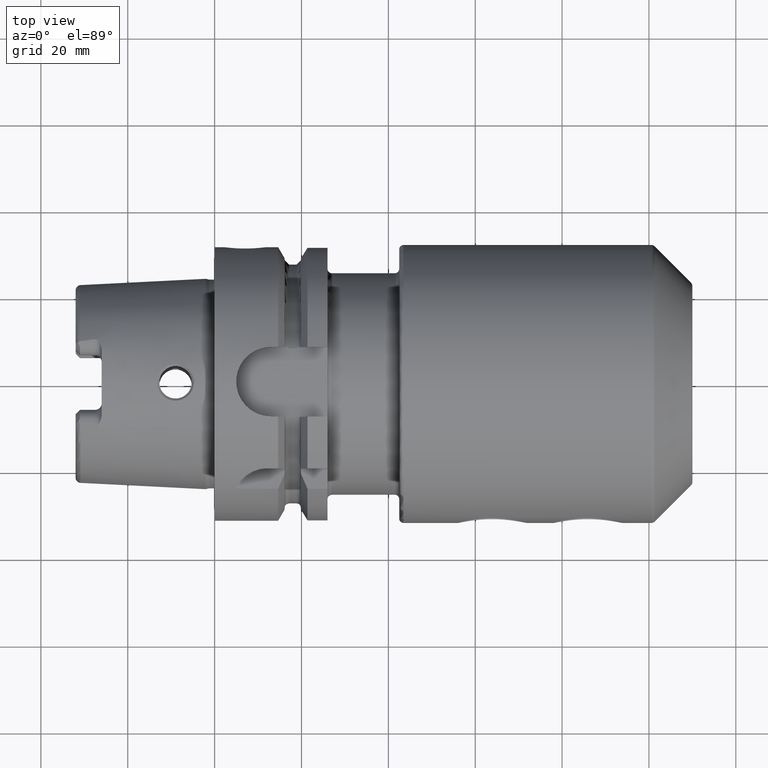
[diagram: clean part render]
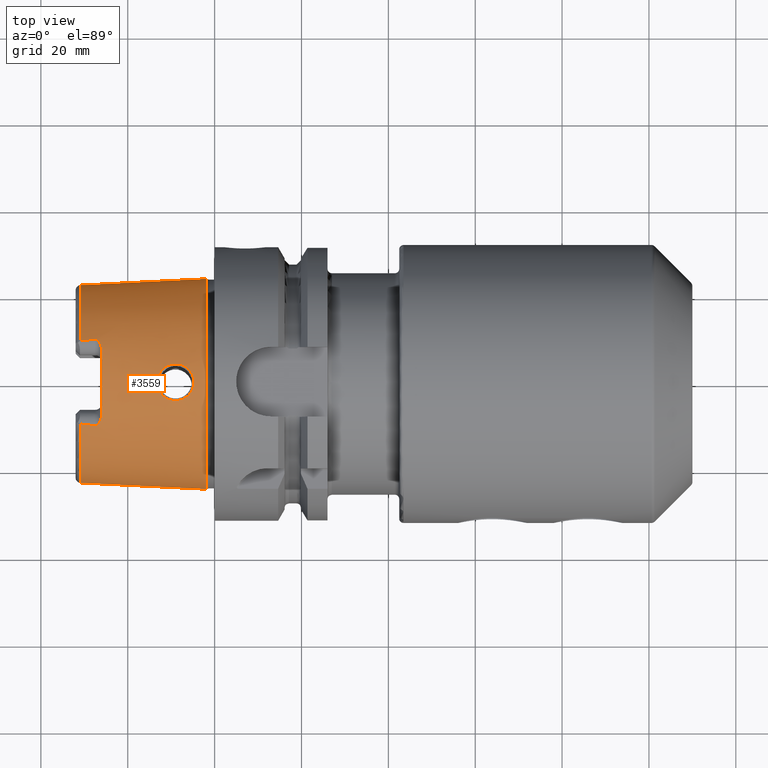
[diagram: same view with one face highlighted and labeled with its STEP entity id]
A machine part, top view. The second image highlights one B-rep face of the part: STEP entity #3559.
In plain terms, the highlighted conical surface has half-angle 2.868 deg.
Its self-contained STEP definition (entity closure, byte-faithful):
#2=CARTESIAN_POINT('',(-3.086004306431E1,-9.562027931336E0,2.067E1));
#3=CARTESIAN_POINT('',(-3.049253157278E1,-9.605880711653E0,2.067E1));
#4=CARTESIAN_POINT('',(-2.975362396220E1,-9.693552821268E0,2.067E1));
#5=CARTESIAN_POINT('',(-2.863363692789E1,-9.824971306479E0,2.067E1));
#6=CARTESIAN_POINT('',(-2.787917629619E1,-9.912538799101E0,2.067E1));
#7=CARTESIAN_POINT('',(-2.75E1,-9.956312881929E0,2.067E1));
#9=CARTESIAN_POINT('',(-2.6E1,0.E0,0.E0));
#10=DIRECTION('',(1.E0,0.E0,0.E0));
#11=DIRECTION('',(0.E0,3.233021702202E-1,9.462957818415E-1));
#12=AXIS2_PLACEMENT_3D('',#9,#10,#11);
#14=CARTESIAN_POINT('',(-2.75E1,9.956312881929E0,2.067E1));
#15=CARTESIAN_POINT('',(-2.787916500946E1,9.912540102101E0,2.067E1));
#16=CARTESIAN_POINT('',(-2.863361059702E1,9.824974374327E0,2.067E1));
#17=CARTESIAN_POINT('',(-2.975359777716E1,9.693555915617E0,2.067E1));
#18=CARTESIAN_POINT('',(-3.049252035285E1,9.605882050456E0,2.067E1));
#19=CARTESIAN_POINT('',(-3.086004306431E1,9.562027931336E0,2.067E1));
#21=CARTESIAN_POINT('',(-2.E0,0.E0,0.E0));
#22=DIRECTION('',(1.E0,0.E0,0.E0));
#23=DIRECTION('',(0.E0,1.E0,0.E0));
#24=AXIS2_PLACEMENT_3D('',#21,#22,#23);
#26=CARTESIAN_POINT('',(-1.324941786023E1,-7.219004501044E-9,2.365679941218E1));
#27=CARTESIAN_POINT('',(-1.324962652857E1,2.128419836803E-1,2.365678895818E1));
#28=CARTESIAN_POINT('',(-1.321789572653E1,6.392154004916E-1,2.365279437370E1));
#29=CARTESIAN_POINT('',(-1.306583173353E1,1.295455377947E0,2.363353567605E1));
#30=CARTESIAN_POINT('',(-1.280774848226E1,1.924363159712E0,2.360322882883E1));
#31=CARTESIAN_POINT('',(-1.245682539685E1,2.498002640667E0,2.356658532007E1));
#32=CARTESIAN_POINT('',(-1.202590717647E1,3.003748276320E0,2.352875153285E1));
#33=CARTESIAN_POINT('',(-1.151587453193E1,3.440667161266E0,2.349418467003E1));
#34=CARTESIAN_POINT('',(-1.094488701051E1,3.790928519035E0,2.346872738592E1));
#35=CARTESIAN_POINT('',(-1.032606556195E1,4.047968073685E0,2.345686676513E1));
#36=CARTESIAN_POINT('',(-9.674487886290E0,4.205448144478E0,2.346208039452E1));
#37=CARTESIAN_POINT('',(-9.005382482159E0,4.259666064034E0,2.348629251751E1));
#38=CARTESIAN_POINT('',(-8.334406518885E0,4.208654245636E0,2.352972397238E1));
#39=CARTESIAN_POINT('',(-7.678583145358E0,4.052835118832E0,2.359064506703E1));
#40=CARTESIAN_POINT('',(-7.054746219975E0,3.795297178824E0,2.366546684138E1));
#41=CARTESIAN_POINT('',(-6.478384090661E0,3.441929617339E0,2.374909717224E1));
#42=CARTESIAN_POINT('',(-5.963720829785E0,2.998888105398E0,2.383556837714E1));
#43=CARTESIAN_POINT('',(-5.531697254110E0,2.487245477785E0,2.391660020727E1));
#44=CARTESIAN_POINT('',(-5.183622696567E0,1.910877761534E0,2.398748891792E1));
#45=CARTESIAN_POINT('',(-4.930520871648E0,1.285429316774E0,2.404215083473E1));
#46=CARTESIAN_POINT('',(-4.781592632661E0,6.352567731875E-1,2.407559904029E1));
#47=CARTESIAN_POINT('',(-4.750478792548E0,2.114683342023E-1,2.408258846670E1));
#48=CARTESIAN_POINT('',(-4.750585905229E0,7.197553449570E-9,2.408258310050E1));
#50=CARTESIAN_POINT('',(-4.750585905229E0,7.197553449570E-9,2.408258310050E1));
#51=CARTESIAN_POINT('',(-4.750395627959E0,-2.105069288240E-1,2.408259263313E1));
#52=CARTESIAN_POINT('',(-4.781309836194E0,-6.330630552620E-1,2.407566909301E1));
#53=CARTESIAN_POINT('',(-4.930068182376E0,-1.284334675678E0,2.404224817580E1));
#54=CARTESIAN_POINT('',(-5.183732271360E0,-1.911208248299E0,2.398746160179E1));
#55=CARTESIAN_POINT('',(-5.531554832014E0,-2.486758661206E0,2.391664059803E1));
#56=CARTESIAN_POINT('',(-5.960736101322E0,-2.995606004120E0,2.383611484308E1));
#57=CARTESIAN_POINT('',(-6.472413726219E0,-3.437431533938E0,2.375005151539E1));
#58=CARTESIAN_POINT('',(-7.047774921505E0,-3.791791568104E0,2.366638920783E1));
#59=CARTESIAN_POINT('',(-7.671990993959E0,-4.050736119112E0,2.359134441504E1));
#60=CARTESIAN_POINT('',(-8.327799970975E0,-4.207619640495E0,2.353024681340E1));
#61=CARTESIAN_POINT('',(-8.998662135271E0,-4.259680399888E0,2.348663216787E1));
#62=CARTESIAN_POINT('',(-9.668037445633E0,-4.206488328283E0,2.346222081393E1));
#63=CARTESIAN_POINT('',(-1.031990079178E1,-4.049961979503E0,2.345683302195E1));
#64=CARTESIAN_POINT('',(-1.093870323089E1,-3.794046262990E0,2.346853209808E1));
#65=CARTESIAN_POINT('',(-1.151051650685E1,-3.444658410973E0,2.349386945058E1));
#66=CARTESIAN_POINT('',(-1.202283712979E1,-3.007012911900E0,2.352850073603E1));
#67=CARTESIAN_POINT('',(-1.245609200384E1,-2.499248587590E0,2.356650362943E1));
#68=CARTESIAN_POINT('',(-1.280745559330E1,-1.924878595842E0,2.360319856514E1));
#69=CARTESIAN_POINT('',(-1.306526541006E1,-1.297000138509E0,2.363346880977E1));
#70=CARTESIAN_POINT('',(-1.321765204718E1,-6.412116938996E-1,2.365275767433E1));
#71=CARTESIAN_POINT('',(-1.324954460014E1,-2.136894906074E-1,2.365679306269E1));
#72=CARTESIAN_POINT('',(-1.324941786023E1,-7.219004501044E-9,2.365679941218E1));
#82=CARTESIAN_POINT('',(-2.651259296226E1,-9.27E0,2.104082891384E1));
#83=CARTESIAN_POINT('',(-2.655060528934E1,-9.340723960488E0,2.100758892059E1));
#84=CARTESIAN_POINT('',(-2.663038504623E1,-9.471838743333E0,2.094458948833E1));
#85=CARTESIAN_POINT('',(-2.676092291608E1,-9.637362323001E0,2.086163997968E1));
#86=CARTESIAN_POINT('',(-2.690131837165E1,-9.770899105642E0,2.079157611E1));
#87=CARTESIAN_POINT('',(-2.705226454993E1,-9.871852756963E0,2.073538687848E1));
#88=CARTESIAN_POINT('',(-2.720441776005E1,-9.934823835429E0,2.069678496112E1));
#89=CARTESIAN_POINT('',(-2.735189841416E1,-9.963277454574E0,2.067488149845E1));
#90=CARTESIAN_POINT('',(-2.745092740764E1,-9.961978077101E0,2.067E1));
#91=CARTESIAN_POINT('',(-2.75E1,-9.956312881929E0,2.067E1));
#93=CARTESIAN_POINT('',(-2.6E1,-7.441787718571E0,2.178189005860E1));
#94=CARTESIAN_POINT('',(-2.6E1,-7.574673232080E0,2.173648969253E1));
#95=CARTESIAN_POINT('',(-2.601813511197E1,-7.850865569829E0,2.163846841914E1));
#96=CARTESIAN_POINT('',(-2.610760114915E1,-8.297034966034E0,2.146679982993E1));
#97=CARTESIAN_POINT('',(-2.626559360892E1,-8.768529603152E0,2.127027062942E1));
#98=CARTESIAN_POINT('',(-2.642147165719E1,-9.100463955368E0,2.112051021193E1));
#99=CARTESIAN_POINT('',(-2.651259296226E1,-9.27E0,2.104082891384E1));
#185=CARTESIAN_POINT('',(-3.086004306431E1,0.E0,0.E0));
#186=DIRECTION('',(1.E0,0.E0,0.E0));
#187=DIRECTION('',(0.E0,1.E0,0.E0));
#188=AXIS2_PLACEMENT_3D('',#185,#186,#187);
#196=CARTESIAN_POINT('',(-3.086004306431E1,9.562027931336E0,2.067E1));
#261=CARTESIAN_POINT('',(-3.086004306431E1,0.E0,0.E0));
#262=DIRECTION('',(1.E0,0.E0,0.E0));
#263=DIRECTION('',(0.E0,-4.198553792210E-1,9.075910205259E-1));
#264=AXIS2_PLACEMENT_3D('',#261,#262,#263);
#457=CARTESIAN_POINT('',(-2.651259296226E1,9.27E0,2.104082891384E1));
#458=CARTESIAN_POINT('',(-2.642147038701E1,9.100461592138E0,2.112051132264E1));
#459=CARTESIAN_POINT('',(-2.626559126698E1,8.768524006326E0,2.127027307791E1));
#460=CARTESIAN_POINT('',(-2.610760038346E1,8.297031203136E0,2.146680127908E1));
#461=CARTESIAN_POINT('',(-2.601813556642E1,7.850867870131E0,2.163846753656E1));
#462=CARTESIAN_POINT('',(-2.6E1,7.574674433427E0,2.173648928209E1));
#463=CARTESIAN_POINT('',(-2.6E1,7.441787718571E0,2.178189005860E1));
#497=CARTESIAN_POINT('',(-2.75E1,9.956312881929E0,2.067E1));
#498=CARTESIAN_POINT('',(-2.745017853421E1,9.962064530943E0,2.067E1));
#499=CARTESIAN_POINT('',(-2.734992708669E1,9.963297705486E0,2.067498167063E1));
#500=CARTESIAN_POINT('',(-2.719976747307E1,9.933459927686E0,2.069769932459E1));
#501=CARTESIAN_POINT('',(-2.704939607884E1,9.870085988272E0,2.073638612523E1));
#502=CARTESIAN_POINT('',(-2.690048936387E1,9.770127639355E0,2.079198258623E1));
#503=CARTESIAN_POINT('',(-2.676049508867E1,9.636879759274E0,2.086188624037E1));
#504=CARTESIAN_POINT('',(-2.663016689843E1,9.471495400784E0,2.094475592633E1));
#505=CARTESIAN_POINT('',(-2.655053916050E1,9.340600924250E0,2.100764674716E1));
#506=CARTESIAN_POINT('',(-2.651259296226E1,9.27E0,2.104082891384E1));
#763=DIRECTION('',(-9.987474205320E-1,5.003588692862E-2,0.E0));
#764=VECTOR('',#763,2.889623789861E1);
#765=CARTESIAN_POINT('',(-2.E0,-2.422042414966E1,0.E0));
#766=LINE('',#765,#764);
#772=DIRECTION('',(-9.987474205320E-1,-5.003588692862E-2,0.E0));
#773=VECTOR('',#772,2.889623789861E1);
#774=CARTESIAN_POINT('',(-2.E0,2.422042414966E1,0.E0));
#775=LINE('',#774,#773);
#3039=CARTESIAN_POINT('',(-2.E0,2.422042414966E1,0.E0));
#3040=CARTESIAN_POINT('',(-2.E0,-2.422042414966E1,0.E0));
#3041=VERTEX_POINT('',#3039);
#3042=VERTEX_POINT('',#3040);
#3043=CARTESIAN_POINT('',(-3.086004306431E1,2.277457525750E1,0.E0));
#3044=VERTEX_POINT('',#3043);
#3045=CARTESIAN_POINT('',(-3.086004306431E1,-2.277457525750E1,0.E0));
#3046=VERTEX_POINT('',#3045);
#3084=VERTEX_POINT('',#196);
#3085=CARTESIAN_POINT('',(-3.086004306431E1,-9.562027931336E0,2.067E1));
#3086=VERTEX_POINT('',#3085);
#3096=CARTESIAN_POINT('',(-2.6E1,7.441787718571E0,2.178189005860E1));
#3097=VERTEX_POINT('',#3096);
#3100=CARTESIAN_POINT('',(-2.75E1,9.956312881929E0,2.067E1));
#3101=VERTEX_POINT('',#3100);
#3102=CARTESIAN_POINT('',(-2.6E1,-7.441787718571E0,2.178189005860E1));
#3103=VERTEX_POINT('',#3102);
#3106=CARTESIAN_POINT('',(-2.75E1,-9.956312881929E0,2.067E1));
#3107=VERTEX_POINT('',#3106);
#3108=VERTEX_POINT('',#506);
#3109=VERTEX_POINT('',#82);
#3250=VERTEX_POINT('',#26);
#3251=VERTEX_POINT('',#48);
#3522=CARTESIAN_POINT('',(-1.643002153216E1,0.E0,0.E0));
#3523=DIRECTION('',(1.E0,0.E0,0.E0));
#3524=DIRECTION('',(0.E0,-1.E0,0.E0));
#3525=AXIS2_PLACEMENT_3D('',#3522,#3523,#3524);
#3526=CONICAL_SURFACE('',#3525,2.349749970358E1,2.868042729042E0);
#3528=ORIENTED_EDGE('',*,*,#3527,.T.);
#3530=ORIENTED_EDGE('',*,*,#3529,.F.);
#3532=ORIENTED_EDGE('',*,*,#3531,.F.);
#3534=ORIENTED_EDGE('',*,*,#3533,.F.);
#3536=ORIENTED_EDGE('',*,*,#3535,.F.);
#3538=ORIENTED_EDGE('',*,*,#3537,.F.);
#3540=ORIENTED_EDGE('',*,*,#3539,.T.);
#3542=ORIENTED_EDGE('',*,*,#3541,.F.);
#3544=ORIENTED_EDGE('',*,*,#3543,.F.);
#3546=ORIENTED_EDGE('',*,*,#3545,.T.);
#3548=ORIENTED_EDGE('',*,*,#3547,.T.);
#3550=ORIENTED_EDGE('',*,*,#3549,.F.);
#3551=EDGE_LOOP('',(#3528,#3530,#3532,#3534,#3536,#3538,#3540,#3542,#3544,#3546,
#3548,#3550));
#3552=FACE_OUTER_BOUND('',#3551,.F.);
#3554=ORIENTED_EDGE('',*,*,#3553,.F.);
#3556=ORIENTED_EDGE('',*,*,#3555,.F.);
#3557=EDGE_LOOP('',(#3554,#3556));
#3558=FACE_BOUND('',#3557,.F.);
#3559=ADVANCED_FACE('',(#3552,#3558),#3526,.T.);
#8=B_SPLINE_CURVE_WITH_KNOTS('',3,(#2,#3,#4,#5,#6,#7),.UNSPECIFIED.,.F.,.F.,(4,
1,1,4),(0.E0,3.333333333333E-1,6.666666666667E-1,1.E0),.UNSPECIFIED.);
#13=CIRCLE('',#12,2.301805680272E1);
#20=B_SPLINE_CURVE_WITH_KNOTS('',3,(#14,#15,#16,#17,#18,#19),.UNSPECIFIED.,.F.,
.F.,(4,1,1,4),(0.E0,3.333333333333E-1,6.666666666667E-1,1.E0),.UNSPECIFIED.);
#25=CIRCLE('',#24,2.422042414966E1);
#49=B_SPLINE_CURVE_WITH_KNOTS('',3,(#26,#27,#28,#29,#30,#31,#32,#33,#34,#35,#36,
#37,#38,#39,#40,#41,#42,#43,#44,#45,#46,#47,#48),.UNSPECIFIED.,.F.,.F.,(4,1,1,1,
1,1,1,1,1,1,1,1,1,1,1,1,1,1,1,1,4),(0.E0,5.E-2,1.E-1,1.5E-1,2.E-1,2.5E-1,3.E-1,
3.5E-1,4.E-1,4.5E-1,5.E-1,5.5E-1,6.E-1,6.5E-1,7.E-1,7.5E-1,8.E-1,8.5E-1,9.E-1,
9.5E-1,1.E0),.UNSPECIFIED.);
#73=B_SPLINE_CURVE_WITH_KNOTS('',3,(#50,#51,#52,#53,#54,#55,#56,#57,#58,#59,#60,
#61,#62,#63,#64,#65,#66,#67,#68,#69,#70,#71,#72),.UNSPECIFIED.,.F.,.F.,(4,1,1,1,
1,1,1,1,1,1,1,1,1,1,1,1,1,1,1,1,4),(0.E0,5.E-2,1.E-1,1.5E-1,2.E-1,2.5E-1,3.E-1,
3.5E-1,4.E-1,4.5E-1,5.E-1,5.5E-1,6.E-1,6.5E-1,7.E-1,7.5E-1,8.E-1,8.5E-1,9.E-1,
9.5E-1,1.E0),.UNSPECIFIED.);
#92=B_SPLINE_CURVE_WITH_KNOTS('',3,(#82,#83,#84,#85,#86,#87,#88,#89,#90,#91),
.UNSPECIFIED.,.F.,.F.,(4,1,1,1,1,1,1,4),(0.E0,1.428571428571E-1,
2.857142857143E-1,4.285714285714E-1,5.714285714286E-1,7.142857142857E-1,
8.571428571429E-1,1.E0),.UNSPECIFIED.);
#100=B_SPLINE_CURVE_WITH_KNOTS('',3,(#93,#94,#95,#96,#97,#98,#99),.UNSPECIFIED.,
.F.,.F.,(4,1,1,1,4),(0.E0,2.5E-1,5.E-1,7.5E-1,1.E0),.UNSPECIFIED.);
#189=CIRCLE('',#188,2.277457525750E1);
#265=CIRCLE('',#264,2.277457525750E1);
#464=B_SPLINE_CURVE_WITH_KNOTS('',3,(#457,#458,#459,#460,#461,#462,#463),
.UNSPECIFIED.,.F.,.F.,(4,1,1,1,4),(0.E0,2.5E-1,5.E-1,7.5E-1,1.E0),
.UNSPECIFIED.);
#507=B_SPLINE_CURVE_WITH_KNOTS('',3,(#497,#498,#499,#500,#501,#502,#503,#504,
#505,#506),.UNSPECIFIED.,.F.,.F.,(4,1,1,1,1,1,1,4),(0.E0,1.428571428571E-1,
2.857142857143E-1,4.285714285714E-1,5.714285714286E-1,7.142857142857E-1,
8.571428571429E-1,1.E0),.UNSPECIFIED.);
#3527=EDGE_CURVE('',#3086,#3107,#8,.T.);
#3529=EDGE_CURVE('',#3109,#3107,#92,.T.);
#3531=EDGE_CURVE('',#3103,#3109,#100,.T.);
#3533=EDGE_CURVE('',#3097,#3103,#13,.T.);
#3535=EDGE_CURVE('',#3108,#3097,#464,.T.);
#3537=EDGE_CURVE('',#3101,#3108,#507,.T.);
#3539=EDGE_CURVE('',#3101,#3084,#20,.T.);
#3541=EDGE_CURVE('',#3044,#3084,#189,.T.);
#3543=EDGE_CURVE('',#3041,#3044,#775,.T.);
#3545=EDGE_CURVE('',#3041,#3042,#25,.T.);
#3547=EDGE_CURVE('',#3042,#3046,#766,.T.);
#3549=EDGE_CURVE('',#3086,#3046,#265,.T.);
#3553=EDGE_CURVE('',#3250,#3251,#49,.T.);
#3555=EDGE_CURVE('',#3251,#3250,#73,.T.);